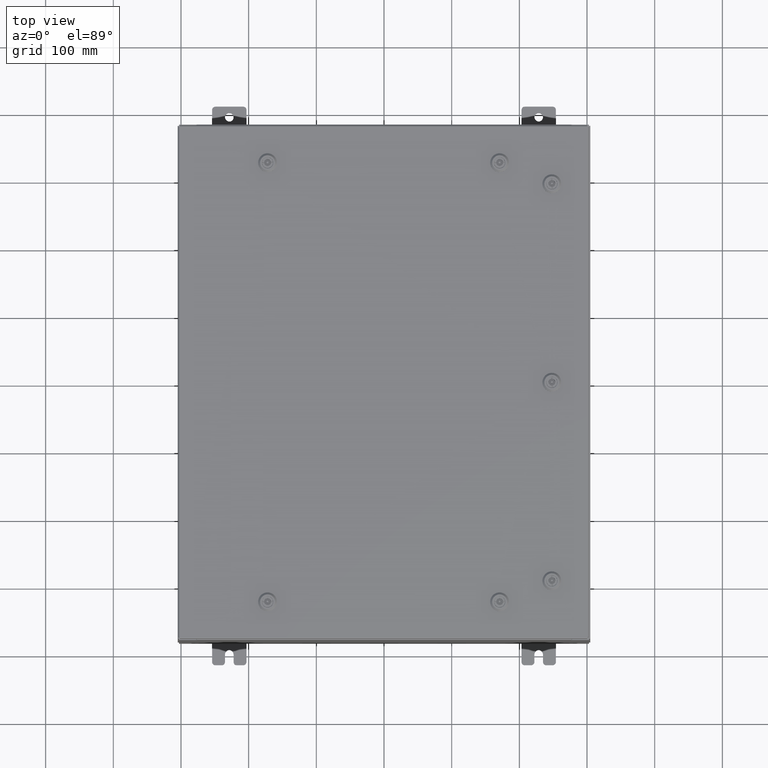
[diagram: clean part render]
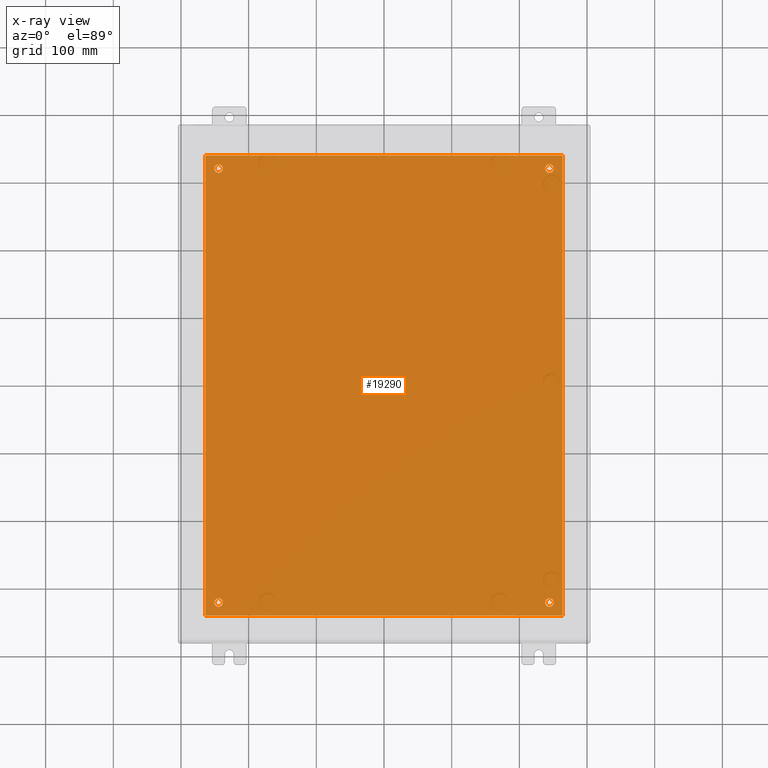
[diagram: x-ray — body ghosted, one internal face saturated and labeled with its STEP entity id]
A machine part, top view, then the same camera in x-ray: the body is ghosted and one INTERNAL B-rep face — a face not visible from any outside direction — is saturated and labeled: STEP entity #19290.
In plain terms, the highlighted planar face has unit normal (0, 0, -1).
Its self-contained STEP definition (entity closure, byte-faithful):
#285 = DIRECTION ( 'NONE',  ( -0.0000000000000000000, -0.0000000000000000000, 1.000000000000000000 ) ) ;
#643 = CARTESIAN_POINT ( 'NONE',  ( 10.50000000000000400, 13.38299999999999900, -0.1040000000000009100 ) ) ;
#731 = CARTESIAN_POINT ( 'NONE',  ( -9.625000000000007100, 12.62500000000000000, -0.1039999999999999800 ) ) ;
#971 = EDGE_CURVE ( 'NONE', #18729, #23263, #31903, .T. ) ;
#1301 = VECTOR ( 'NONE', #5690, 39.37007874015748100 ) ;
#2876 = CARTESIAN_POINT ( 'NONE',  ( 10.38300000000000100, 13.38299999999999700, -0.1040000000000009100 ) ) ;
#3478 = DIRECTION ( 'NONE',  ( -1.000000000000000000, 0.0000000000000000000, 0.0000000000000000000 ) ) ;
#3995 = DIRECTION ( 'NONE',  ( -1.000000000000000000, 0.0000000000000000000, -0.0000000000000000000 ) ) ;
#4320 = CARTESIAN_POINT ( 'NONE',  ( -10.38300000000000100, 13.38299999999999700, -0.1040000000000020100 ) ) ;
#4774 = CARTESIAN_POINT ( 'NONE',  ( 9.875000000000007100, 12.62500000000000000, -0.1039999999999999800 ) ) ;
#4950 = DIRECTION ( 'NONE',  ( 0.0000000000000000000, -1.000000000000000000, 0.0000000000000000000 ) ) ;
#5134 = VERTEX_POINT ( 'NONE', #11493 ) ;
#5600 = ORIENTED_EDGE ( 'NONE', *, *, #29453, .F. ) ;
#5661 = DIRECTION ( 'NONE',  ( -0.0000000000000000000, -0.0000000000000000000, 1.000000000000000000 ) ) ;
#5690 = DIRECTION ( 'NONE',  ( -1.000000000000000000, -0.0000000000000000000, -0.0000000000000000000 ) ) ;
#5764 = DIRECTION ( 'NONE',  ( -1.000000000000000000, 0.0000000000000000000, 0.0000000000000000000 ) ) ;
#6394 = EDGE_CURVE ( 'NONE', #62672, #9134, #12083, .T. ) ;
#6761 = EDGE_CURVE ( 'NONE', #23263, #18729, #26667, .T. ) ;
#6801 = ORIENTED_EDGE ( 'NONE', *, *, #42674, .F. ) ;
#6847 = CARTESIAN_POINT ( 'NONE',  ( 9.875000000000007100, -12.62500000000000000, -0.1039999999999999800 ) ) ;
#7475 = AXIS2_PLACEMENT_3D ( 'NONE', #8119, #13136, #11991 ) ;
#7988 = VECTOR ( 'NONE', #15843, 39.37007874015748100 ) ;
#8119 = CARTESIAN_POINT ( 'NONE',  ( 9.625000000000007100, 12.62500000000000000, -0.1039999999999999800 ) ) ;
#9134 = VERTEX_POINT ( 'NONE', #6847 ) ;
#9280 = DIRECTION ( 'NONE',  ( -0.0000000000000000000, -0.0000000000000000000, 1.000000000000000000 ) ) ;
#9979 = CARTESIAN_POINT ( 'NONE',  ( -10.38300000000000100, 13.38299999999999700, -0.1040000000000020100 ) ) ;
#10014 = CARTESIAN_POINT ( 'NONE',  ( -9.375000000000007100, -12.62500000000000000, -0.1039999999999999800 ) ) ;
#10790 = ORIENTED_EDGE ( 'NONE', *, *, #41924, .T. ) ;
#11493 = CARTESIAN_POINT ( 'NONE',  ( 10.38300000000000100, -13.38299999999999700, -0.1040000000000009100 ) ) ;
#11722 = CARTESIAN_POINT ( 'NONE',  ( 9.375000000000007100, 12.62500000000000000, -0.1039999999999999800 ) ) ;
#11991 = DIRECTION ( 'NONE',  ( -1.000000000000000000, 0.0000000000000000000, 0.0000000000000000000 ) ) ;
#12083 = CIRCLE ( 'NONE', #41962, 0.2499999999999998100 ) ;
#12613 = EDGE_CURVE ( 'NONE', #54456, #35261, #40376, .T. ) ;
#12764 = CARTESIAN_POINT ( 'NONE',  ( -9.875000000000007100, 12.62500000000000000, -0.1039999999999999800 ) ) ;
#13136 = DIRECTION ( 'NONE',  ( -0.0000000000000000000, -0.0000000000000000000, 1.000000000000000000 ) ) ;
#15620 = ORIENTED_EDGE ( 'NONE', *, *, #49601, .T. ) ;
#15843 = DIRECTION ( 'NONE',  ( 1.000000000000000000, -0.0000000000000000000, -0.0000000000000000000 ) ) ;
#16464 = ORIENTED_EDGE ( 'NONE', *, *, #38763, .T. ) ;
#16999 = CARTESIAN_POINT ( 'NONE',  ( 10.38300000000000100, -13.38299999999999700, -0.1040000000000009100 ) ) ;
#18729 = VERTEX_POINT ( 'NONE', #4774 ) ;
#18794 = CARTESIAN_POINT ( 'NONE',  ( 0.0000000000000000000, 0.0000000000000000000, -0.1039999999999999800 ) ) ;
#19290 = ADVANCED_FACE ( 'NONE', ( #45889, #37002, #52631, #20971, #20042 ), #28510, .T. ) ;
#19354 = CARTESIAN_POINT ( 'NONE',  ( 9.625000000000007100, -12.62500000000000000, -0.1039999999999999800 ) ) ;
#20042 = FACE_OUTER_BOUND ( 'NONE', #38729, .T. ) ;
#20971 = FACE_BOUND ( 'NONE', #38972, .T. ) ;
#21967 = DIRECTION ( 'NONE',  ( 0.0000000000000000000, 1.000000000000000000, 0.0000000000000000000 ) ) ;
#23263 = VERTEX_POINT ( 'NONE', #11722 ) ;
#23831 = CIRCLE ( 'NONE', #46920, 0.2500000000000008900 ) ;
#24171 = VERTEX_POINT ( 'NONE', #4320 ) ;
#26460 = VECTOR ( 'NONE', #21967, 39.37007874015748100 ) ;
#26667 = CIRCLE ( 'NONE', #7475, 0.2499999999999998100 ) ;
#27746 = LINE ( 'NONE', #643, #1301 ) ;
#28510 = PLANE ( 'NONE',  #42501 ) ;
#29453 = EDGE_CURVE ( 'NONE', #5134, #61046, #52820, .T. ) ;
#30078 = CARTESIAN_POINT ( 'NONE',  ( -9.625000000000007100, -12.62500000000000000, -0.1039999999999999800 ) ) ;
#30442 = EDGE_LOOP ( 'NONE', ( #61841, #36051 ) ) ;
#30634 = ORIENTED_EDGE ( 'NONE', *, *, #41834, .T. ) ;
#31903 = CIRCLE ( 'NONE', #49222, 0.2499999999999998100 ) ;
#32003 = CARTESIAN_POINT ( 'NONE',  ( -9.875000000000007100, -12.62500000000000000, -0.1039999999999999800 ) ) ;
#32697 = VERTEX_POINT ( 'NONE', #10014 ) ;
#33251 = DIRECTION ( 'NONE',  ( -0.0000000000000000000, -0.0000000000000000000, 1.000000000000000000 ) ) ;
#33346 = CIRCLE ( 'NONE', #46828, 0.2499999999999998100 ) ;
#33737 = DIRECTION ( 'NONE',  ( 0.0000000000000000000, 0.0000000000000000000, -1.000000000000000000 ) ) ;
#34377 = LINE ( 'NONE', #55404, #7988 ) ;
#35093 = DIRECTION ( 'NONE',  ( -1.000000000000000000, 0.0000000000000000000, 0.0000000000000000000 ) ) ;
#35261 = VERTEX_POINT ( 'NONE', #35988 ) ;
#35517 = DIRECTION ( 'NONE',  ( -0.0000000000000000000, -0.0000000000000000000, 1.000000000000000000 ) ) ;
#35988 = CARTESIAN_POINT ( 'NONE',  ( -9.375000000000007100, 12.62500000000000000, -0.1039999999999999800 ) ) ;
#36051 = ORIENTED_EDGE ( 'NONE', *, *, #6761, .T. ) ;
#36496 = VERTEX_POINT ( 'NONE', #32003 ) ;
#37002 = FACE_BOUND ( 'NONE', #60375, .T. ) ;
#37609 = AXIS2_PLACEMENT_3D ( 'NONE', #49576, #55025, #41182 ) ;
#38169 = ORIENTED_EDGE ( 'NONE', *, *, #62351, .F. ) ;
#38729 = EDGE_LOOP ( 'NONE', ( #38169, #58670, #6801, #5600 ) ) ;
#38763 = EDGE_CURVE ( 'NONE', #9134, #62672, #33346, .T. ) ;
#38972 = EDGE_LOOP ( 'NONE', ( #10790, #44237 ) ) ;
#38998 = CARTESIAN_POINT ( 'NONE',  ( 9.625000000000007100, -12.62500000000000000, -0.1039999999999999800 ) ) ;
#39111 = DIRECTION ( 'NONE',  ( -1.000000000000000000, 0.0000000000000000000, 0.0000000000000000000 ) ) ;
#40376 = CIRCLE ( 'NONE', #37609, 0.2500000000000008900 ) ;
#41182 = DIRECTION ( 'NONE',  ( -1.000000000000000000, 0.0000000000000000000, 0.0000000000000000000 ) ) ;
#41834 = EDGE_CURVE ( 'NONE', #36496, #32697, #23831, .T. ) ;
#41924 = EDGE_CURVE ( 'NONE', #35261, #54456, #60159, .T. ) ;
#41962 = AXIS2_PLACEMENT_3D ( 'NONE', #19354, #5661, #39111 ) ;
#42501 = AXIS2_PLACEMENT_3D ( 'NONE', #18794, #33737, #3995 ) ;
#42674 = EDGE_CURVE ( 'NONE', #61046, #24171, #27746, .T. ) ;
#43931 = DIRECTION ( 'NONE',  ( -1.000000000000000000, 0.0000000000000000000, 0.0000000000000000000 ) ) ;
#44237 = ORIENTED_EDGE ( 'NONE', *, *, #12613, .T. ) ;
#44406 = VECTOR ( 'NONE', #4950, 39.37007874015748100 ) ;
#45889 = FACE_BOUND ( 'NONE', #53348, .T. ) ;
#46828 = AXIS2_PLACEMENT_3D ( 'NONE', #38998, #9280, #43931 ) ;
#46920 = AXIS2_PLACEMENT_3D ( 'NONE', #30078, #285, #35093 ) ;
#49222 = AXIS2_PLACEMENT_3D ( 'NONE', #60888, #60603, #60398 ) ;
#49576 = CARTESIAN_POINT ( 'NONE',  ( -9.625000000000007100, 12.62500000000000000, -0.1039999999999999800 ) ) ;
#49601 = EDGE_CURVE ( 'NONE', #32697, #36496, #50565, .T. ) ;
#50565 = CIRCLE ( 'NONE', #53026, 0.2500000000000008900 ) ;
#50901 = CARTESIAN_POINT ( 'NONE',  ( 9.375000000000007100, -12.62500000000000000, -0.1039999999999999800 ) ) ;
#52631 = FACE_BOUND ( 'NONE', #30442, .T. ) ;
#52713 = ORIENTED_EDGE ( 'NONE', *, *, #6394, .T. ) ;
#52820 = LINE ( 'NONE', #16999, #26460 ) ;
#53026 = AXIS2_PLACEMENT_3D ( 'NONE', #62854, #33251, #3478 ) ;
#53348 = EDGE_LOOP ( 'NONE', ( #15620, #30634 ) ) ;
#54456 = VERTEX_POINT ( 'NONE', #12764 ) ;
#55025 = DIRECTION ( 'NONE',  ( -0.0000000000000000000, -0.0000000000000000000, 1.000000000000000000 ) ) ;
#55404 = CARTESIAN_POINT ( 'NONE',  ( -10.50000000000000200, -13.38299999999999900, -0.1040000000000009100 ) ) ;
#56118 = VERTEX_POINT ( 'NONE', #56960 ) ;
#56960 = CARTESIAN_POINT ( 'NONE',  ( -10.38300000000000100, -13.38299999999999900, -0.1040000000000009100 ) ) ;
#57521 = LINE ( 'NONE', #9979, #44406 ) ;
#58670 = ORIENTED_EDGE ( 'NONE', *, *, #62433, .F. ) ;
#60159 = CIRCLE ( 'NONE', #63474, 0.2500000000000008900 ) ;
#60375 = EDGE_LOOP ( 'NONE', ( #16464, #52713 ) ) ;
#60398 = DIRECTION ( 'NONE',  ( -1.000000000000000000, 0.0000000000000000000, 0.0000000000000000000 ) ) ;
#60603 = DIRECTION ( 'NONE',  ( -0.0000000000000000000, -0.0000000000000000000, 1.000000000000000000 ) ) ;
#60888 = CARTESIAN_POINT ( 'NONE',  ( 9.625000000000007100, 12.62500000000000000, -0.1039999999999999800 ) ) ;
#61046 = VERTEX_POINT ( 'NONE', #2876 ) ;
#61841 = ORIENTED_EDGE ( 'NONE', *, *, #971, .T. ) ;
#62351 = EDGE_CURVE ( 'NONE', #56118, #5134, #34377, .T. ) ;
#62433 = EDGE_CURVE ( 'NONE', #24171, #56118, #57521, .T. ) ;
#62672 = VERTEX_POINT ( 'NONE', #50901 ) ;
#62854 = CARTESIAN_POINT ( 'NONE',  ( -9.625000000000007100, -12.62500000000000000, -0.1039999999999999800 ) ) ;
#63474 = AXIS2_PLACEMENT_3D ( 'NONE', #731, #35517, #5764 ) ;